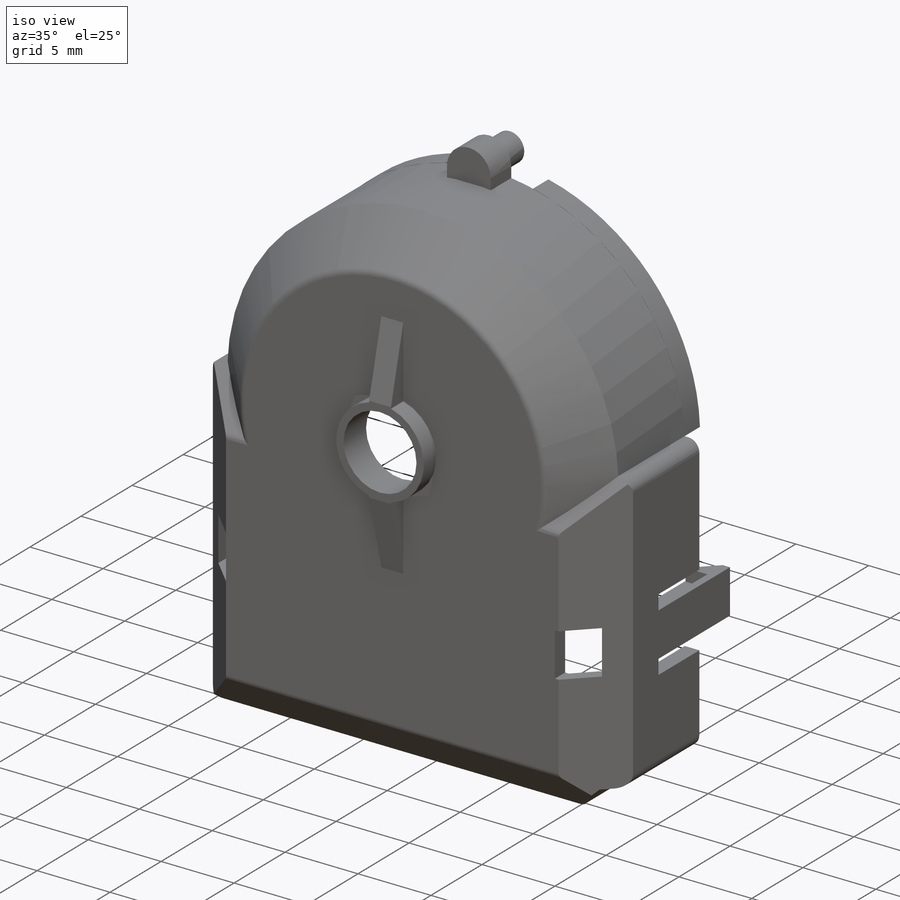
[diagram: iso view]
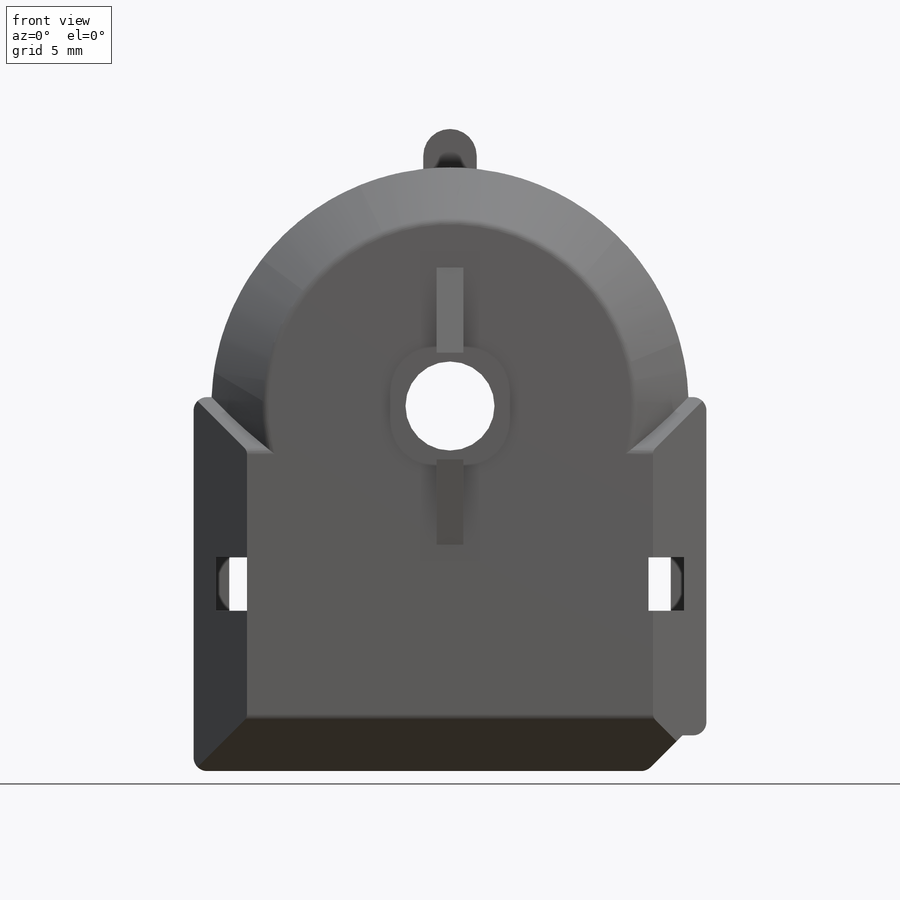
[diagram: front view]
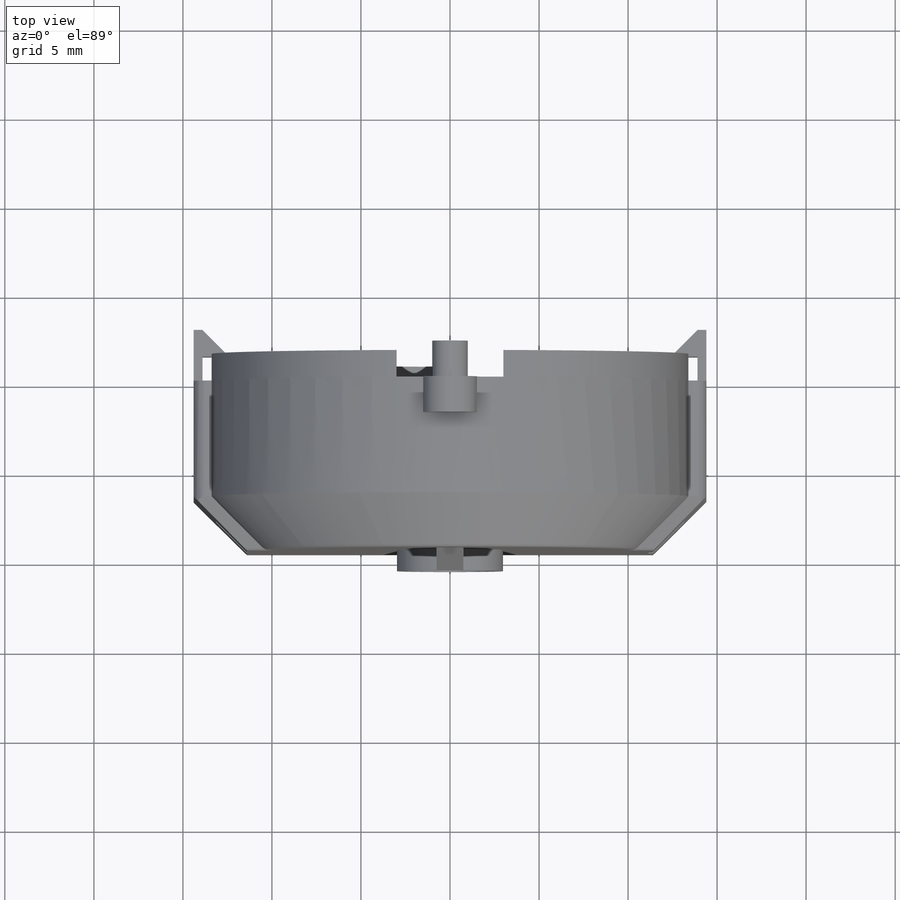
[diagram: top view]
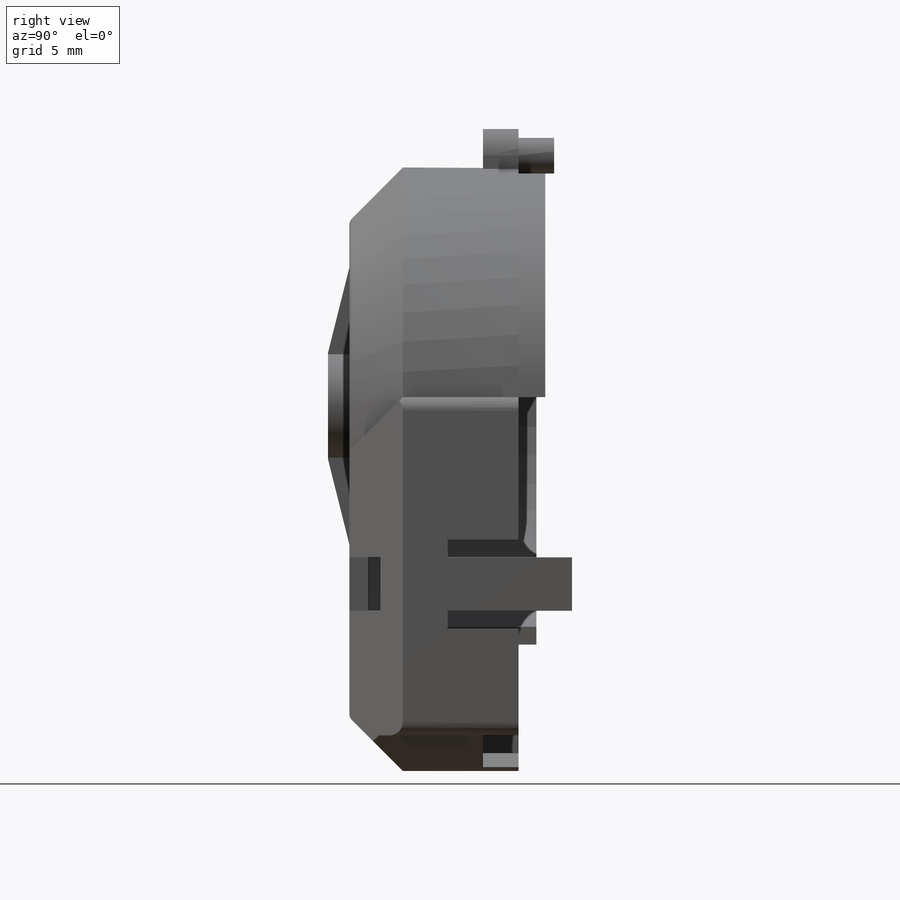
[diagram: right view]
SOLIDWORKS PART (.sldprt)
format: sldprt  version: not decoded by parser v0  size: 842,752 bytes
history: native  units: mm
features: sketch x16, extrude x10, cut_extrude x6, plane x3, chamfer x2, fillet x2, material x1 (+11 scaffold rows collapsed; 1 parser-record rows omitted)
feature tree (52):
  scaffold x11  (default folders/planes/origin — collapsed)
  material  "Material <not specified>"
  plane  "Ön Düzlem"
  plane  "Üst Düzlem"
  plane  "Sağ Düzlem"
  parser-record x1  (decoder bookkeeping rows leaked as tree rows — omitted from the tree; the rows remain in map.json)
  sketch  "Sketch1"  dims[c1.D1=25.8mm c1.D4=0.25mm c1.D11=0.25mm c1.D12=0.8mm c1.D13=1.0mm c1.D14=1.0mm c1.D15=0.8mm c1.D16=0.8mm c1.D17=0.8mm c1.D18=1.0mm c1.D19=1.0mm c1.D20=1.0mm c1.D21=1.0mm c1.D22=1.0mm c1.D23=1.0mm c1.D24=0.8mm c1.D25=0.8mm c1.D26=1.0mm c1.D27=1.0mm c1.D28=1.0mm c1.D5=0.25mm c1.D29=0.25mm c1.D30=1.5mm c1.D32=2.0mm c1.D33=0.8mm c1.D36=0.8mm c1.D37=0.8mm c1.D38=0.8mm c2.D27=0.8mm c2.D39=0.8mm c2.D2=13.9mm c2.D3=13.9mm c2.D4=20.0mm c2.D5=~4.435603mm c3.D5=45.0deg c3.D6=2.0mm c3.D7=2.0mm c3.D8=8.0mm c3.D9=4.0mm c3.D10=1.5mm c3.D13=2.5mm c3.D14=9.0mm c3.D18=2.0mm c3.D19=2.0mm c3.D20=5.0mm c3.D21=4.0mm c3.D22=4.0mm c3.D23=2.0mm c3.D26=2.0mm c3.D27=6.5mm c3.D28=0.0mm c4.D6=3.0mm c4.D7=3.0mm c4.D29=4.0mm c4.D31=1.5mm c4.D36=2.0mm c4.D37=4.0mm c4.D38=6.5mm c4.D27=6.5mm c4.D39=2.0mm c5.D6=0.5mm c5.D7=0.5mm]
  extrude  "Boss-Extrude1"  Depth=6.5mm
  sketch  "Sketch3"
  extrude  "Boss-Extrude4"  Depth=3mm
  chamfer  "Chamfer2"  Distance=3mm Angle=45deg
  sketch  "Sketch4"
  cut_extrude  "Cut-Extrude1"  [1 undecoded]
  sketch  "Sketch5"
  cut_extrude  "Cut-Extrude2"  Depth=2mm
  chamfer  "Chamfer3"  Distance=2mm Angle=45deg
  sketch  "Sketch6"  dims[D1=5.0mm]
  cut_extrude  "Cut-Extrude3"  [1 undecoded]
  sketch  "Sketch7"  dims[D1=6.0mm D2=1.5mm D3=0.75mm D4=3.0mm D5=3.0mm D6=0.75mm D7=0.75mm]
  extrude  "Boss-Extrude5"  Depth=1.2mm
  sketch  "Sketch8"  dims[D1=~4.782688mm D2=1.2mm]
  extrude  "Boss-Extrude29"  Depth=0.75mm
  sketch  "Sketch10"
  extrude  "Boss-Extrude30"  Depth=7.5mm
  sketch  "Sketch11"  dims[c1.D1=25.8mm c1.D4=0.25mm c1.D11=0.25mm c1.D12=0.8mm c1.D13=1.0mm c1.D14=1.0mm c1.D15=0.8mm c1.D16=0.8mm c1.D17=0.8mm c1.D18=1.0mm c1.D19=1.0mm c1.D20=1.0mm c1.D21=1.0mm c1.D22=1.0mm c1.D23=1.0mm c1.D24=0.8mm c1.D25=0.8mm c1.D26=1.0mm c1.D27=1.0mm c1.D28=1.0mm c1.D5=0.25mm c1.D29=0.25mm c1.D30=1.5mm c1.D32=2.0mm c1.D33=0.8mm c1.D36=0.8mm c1.D37=0.8mm c1.D38=0.8mm c2.D27=0.8mm c2.D39=0.8mm c2.D2=13.9mm c2.D3=13.9mm c2.D4=20.0mm c2.D5=~4.435603mm c3.D5=45.0deg c3.D6=2.0mm c3.D7=2.0mm c3.D8=8.0mm c3.D9=4.0mm c3.D10=1.5mm c3.D13=2.5mm c3.D14=9.0mm c3.D18=2.0mm c3.D19=2.0mm c3.D20=5.0mm c3.D21=4.0mm c3.D22=4.0mm c3.D23=2.0mm c3.D26=2.0mm c3.D27=6.5mm c3.D28=0.0mm c4.D6=3.0mm c4.D7=3.0mm c4.D29=4.0mm c4.D31=1.5mm c4.D36=2.0mm c4.D37=4.0mm c4.D38=6.5mm c4.D27=6.5mm c4.D39=2.0mm c4.D2=3.0mm c4.D3=0.5mm c4.D4=3.0mm c4.D5=0.5mm c5.D6=0.5mm c5.D7=0.5mm]
  extrude  "Boss-Extrude31"  Depth=3mm
  sketch  "Sketch12"  dims[D1=1.5mm D2=1.5mm D3=1.5mm D4=1.5mm]
  extrude  "Boss-Extrude32"  Depth=3mm
  sketch  "Sketch13"  dims[D1=2.0mm D2=2.0mm]
  cut_extrude  "Cut-Extrude4"  [1 undecoded]
  sketch  "Sketch14"  dims[D1=0.0mm D2=2.0mm]
  cut_extrude  "Cut-Extrude5"  [1 undecoded]
  sketch  "Sketch15"  dims[D1=1.0mm D2=1.0mm D3=1.0mm D4=1.0mm]
  cut_extrude  "Cut-Extrude6"  Depth=4mm
  sketch  "Sketch16"  dims[D4=3.0mm D1=3.0mm D2=6.0mm D3=3.0mm D5=1.0mm]
  extrude  "Boss-Extrude33"  Depth=2mm
  sketch  "Sketch17"  dims[D1=2.0mm]
  extrude  "Boss-Extrude34"  Depth=2mm
  fillet  "Fillet2"  Radius=0.5mm
  fillet  "Fillet3"  Radius=0.5mm
  sketch  "Sketch18"  dims[D1=3.0mm D2=3.0mm]
  extrude  "Boss-Extrude37"  Depth=1.5mm
decode coverage: 28 of 36 modeling features carry decoded parameters
note: ~ marks probable driven/reference dimensions
note: 4 parameter values undecoded
summary: no parameter record found for 4 features
note: suppression state not decoded; provenance and decode notes live in map.json
